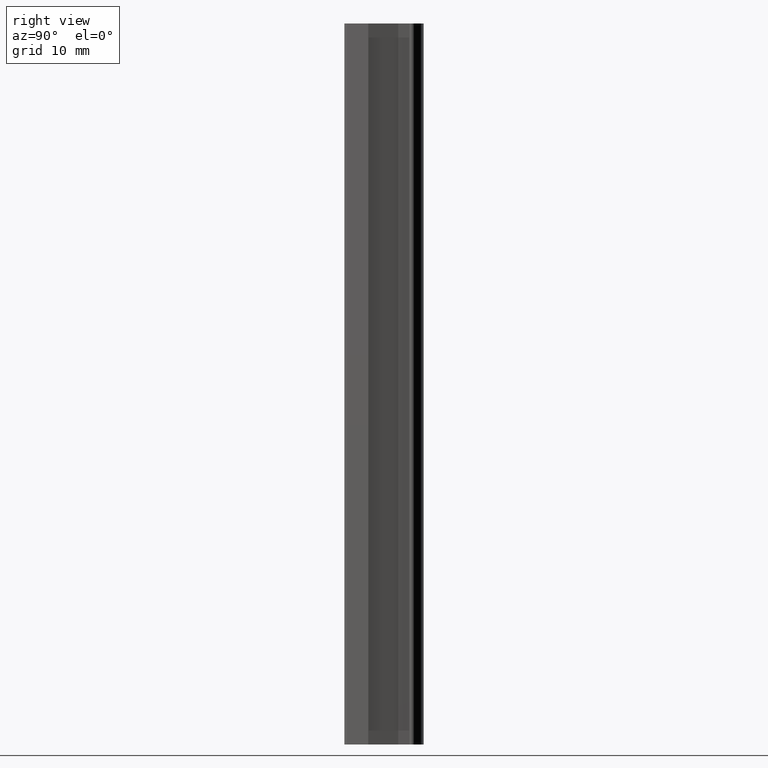
[diagram: clean part render]
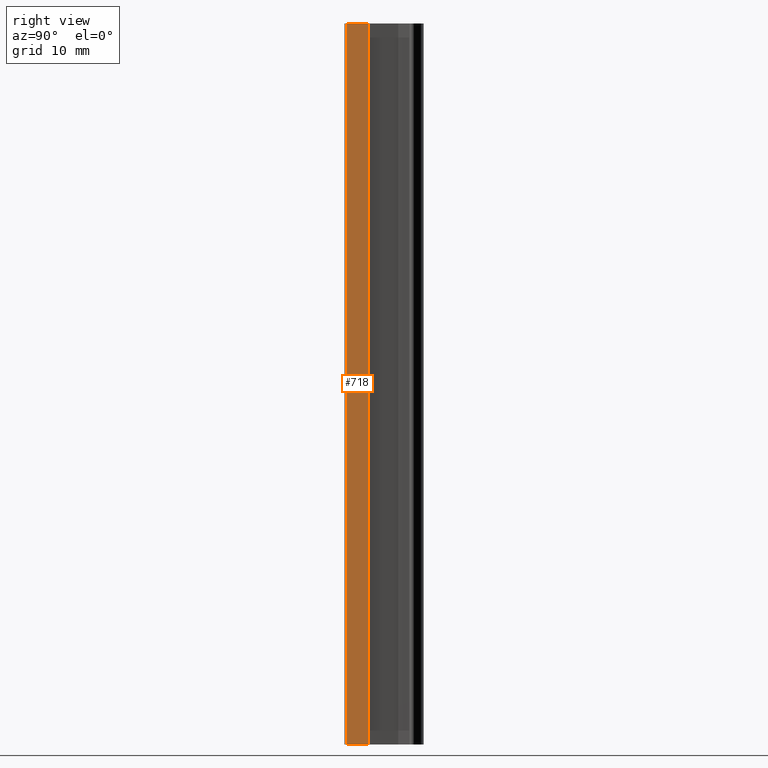
[diagram: same view with one face highlighted and labeled with its STEP entity id]
A machine part, right view. The second image highlights one B-rep face of the part: STEP entity #718.
In plain terms, the highlighted planar face has unit normal (0.9103, -0.414, 0).
Its self-contained STEP definition (entity closure, byte-faithful):
#197=FACE_OUTER_BOUND('',#227,.T.);
#227=EDGE_LOOP('',(#607,#608,#609,#610));
#293=LINE('',#1167,#359);
#294=LINE('',#1170,#360);
#295=LINE('',#1172,#361);
#296=LINE('',#1173,#362);
#359=VECTOR('',#956,10.);
#360=VECTOR('',#959,10.);
#361=VECTOR('',#960,10.);
#362=VECTOR('',#961,10.);
#415=VERTEX_POINT('',#1163);
#416=VERTEX_POINT('',#1165);
#417=VERTEX_POINT('',#1169);
#418=VERTEX_POINT('',#1171);
#497=EDGE_CURVE('',#415,#416,#293,.T.);
#498=EDGE_CURVE('',#417,#415,#294,.T.);
#499=EDGE_CURVE('',#418,#416,#295,.T.);
#500=EDGE_CURVE('',#417,#418,#296,.T.);
#607=ORIENTED_EDGE('',*,*,#498,.T.);
#608=ORIENTED_EDGE('',*,*,#497,.T.);
#609=ORIENTED_EDGE('',*,*,#499,.F.);
#610=ORIENTED_EDGE('',*,*,#500,.F.);
#689=PLANE('',#784);
#718=ADVANCED_FACE('',(#197),#689,.T.);
#784=AXIS2_PLACEMENT_3D('',#1168,#957,#958);
#956=DIRECTION('',(0.,0.,1.));
#957=DIRECTION('center_axis',(0.910272407610897,-0.414009835562227,0.));
#958=DIRECTION('ref_axis',(0.414009835562226,0.910272407610896,0.));
#959=DIRECTION('',(0.414009835562226,0.910272407610896,0.));
#960=DIRECTION('',(0.414009835562226,0.910272407610896,0.));
#961=DIRECTION('',(0.,0.,1.));
#1163=CARTESIAN_POINT('',(6.5,-2.21875459062215,0.));
#1165=CARTESIAN_POINT('',(6.5,-2.21875459062215,100.));
#1167=CARTESIAN_POINT('',(6.5,-2.21875459062215,0.));
#1168=CARTESIAN_POINT('Origin',(5.15492241852512,-5.17614087312402,0.));
#1169=CARTESIAN_POINT('',(5.15492241852512,-5.17614087312402,0.));
#1170=CARTESIAN_POINT('',(5.15492241852512,-5.17614087312402,0.));
#1171=CARTESIAN_POINT('',(5.15492241852512,-5.17614087312402,100.));
#1172=CARTESIAN_POINT('',(5.15492241852512,-5.17614087312402,100.));
#1173=CARTESIAN_POINT('',(5.15492241852512,-5.17614087312402,0.));